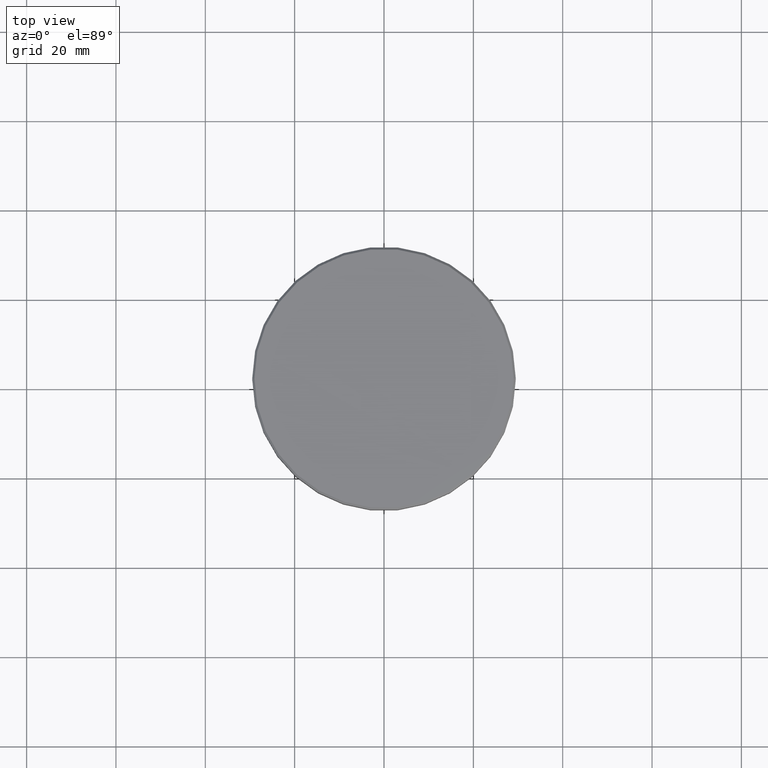
[diagram: clean part render]
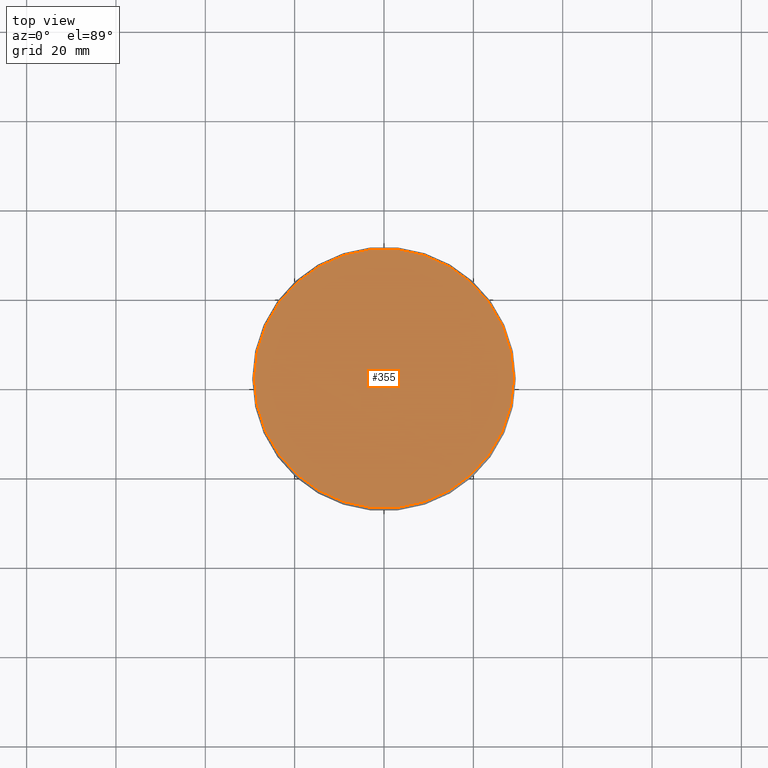
[diagram: same view with one face highlighted and labeled with its STEP entity id]
A machine part, top view. The second image highlights one B-rep face of the part: STEP entity #355.
In plain terms, the highlighted planar face has unit normal (0, -0, 1).
Its self-contained STEP definition (entity closure, byte-faithful):
#45 = CARTESIAN_POINT ( 'NONE',  ( 0.000000000000000000, 0.000000000000000000, 0.000000000000000000 ) ) ;
#126 = AXIS2_PLACEMENT_3D ( 'NONE', #945, #295, #492 ) ;
#187 = EDGE_CURVE ( 'NONE', #862, #587, #1005, .T. ) ;
#201 = CIRCLE ( 'NONE', #260, 28.99999999999999645 ) ;
#260 = AXIS2_PLACEMENT_3D ( 'NONE', #45, #929, #503 ) ;
#295 = DIRECTION ( 'NONE',  ( 0.000000000000000000, -0.000000000000000000, 1.000000000000000000 ) ) ;
#348 = DIRECTION ( 'NONE',  ( 1.000000000000000000, 0.000000000000000000, 0.000000000000000000 ) ) ;
#355 = ADVANCED_FACE ( 'NONE', ( #505 ), #390, .T. ) ;
#390 = PLANE ( 'NONE',  #126 ) ;
#424 = ORIENTED_EDGE ( 'NONE', *, *, #187, .T. ) ;
#438 = CARTESIAN_POINT ( 'NONE',  ( 28.99999999999999645, 3.582091887506007817E-15, 0.000000000000000000 ) ) ;
#492 = DIRECTION ( 'NONE',  ( 1.000000000000000000, 0.000000000000000000, 0.000000000000000000 ) ) ;
#503 = DIRECTION ( 'NONE',  ( 1.000000000000000000, 0.000000000000000000, 0.000000000000000000 ) ) ;
#505 = FACE_OUTER_BOUND ( 'NONE', #718, .T. ) ;
#535 = AXIS2_PLACEMENT_3D ( 'NONE', #1182, #1161, #348 ) ;
#587 = VERTEX_POINT ( 'NONE', #438 ) ;
#626 = ORIENTED_EDGE ( 'NONE', *, *, #773, .T. ) ;
#718 = EDGE_LOOP ( 'NONE', ( #424, #626 ) ) ;
#773 = EDGE_CURVE ( 'NONE', #587, #862, #201, .T. ) ;
#862 = VERTEX_POINT ( 'NONE', #867 ) ;
#867 = CARTESIAN_POINT ( 'NONE',  ( -28.99999999999999645, 0.000000000000000000, 0.000000000000000000 ) ) ;
#929 = DIRECTION ( 'NONE',  ( -0.000000000000000000, -0.000000000000000000, 1.000000000000000000 ) ) ;
#945 = CARTESIAN_POINT ( 'NONE',  ( 0.000000000000000000, 0.000000000000000000, 0.000000000000000000 ) ) ;
#1005 = CIRCLE ( 'NONE', #535, 28.99999999999999645 ) ;
#1161 = DIRECTION ( 'NONE',  ( -0.000000000000000000, -0.000000000000000000, 1.000000000000000000 ) ) ;
#1182 = CARTESIAN_POINT ( 'NONE',  ( 0.000000000000000000, 0.000000000000000000, 0.000000000000000000 ) ) ;